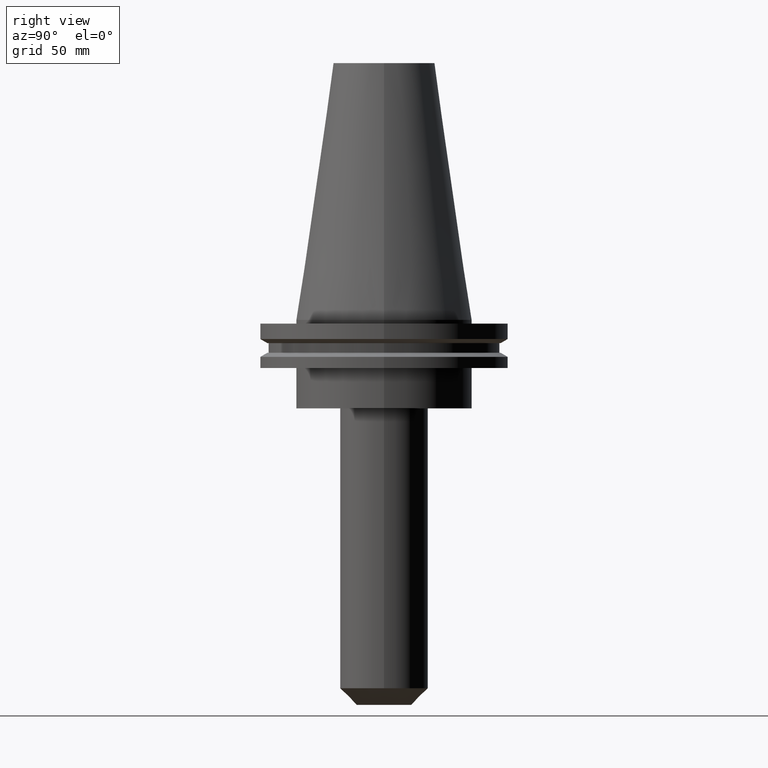
[diagram: clean part render]
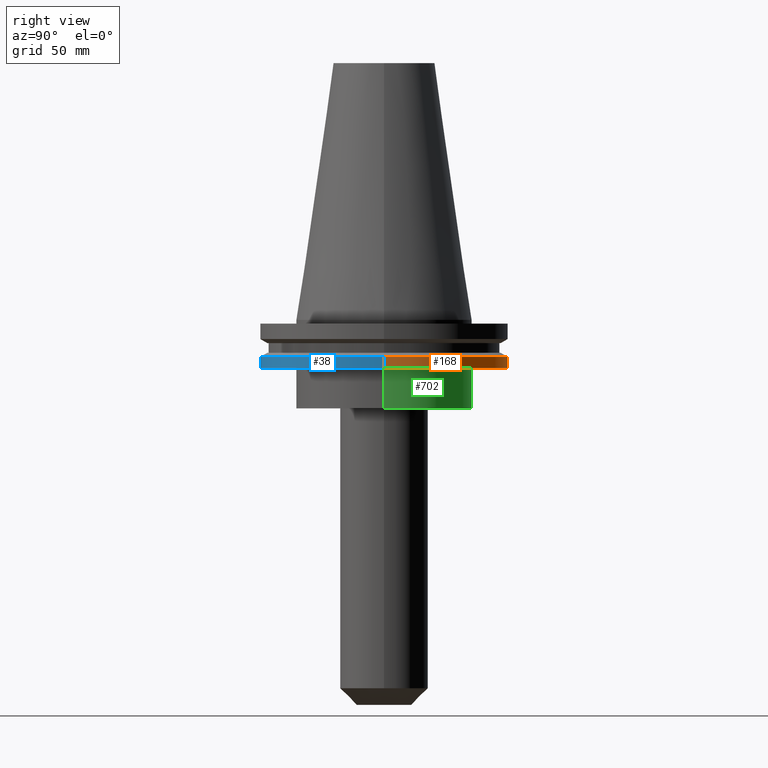
[diagram: same view with three faces highlighted in distinct colors, each labeled with its STEP entity id]
A machine part, right view with three faces highlighted in distinct colors.
Their STEP definitions:

[orange] entity #168 — the highlighted cylindrical surface (partial cylindrical patch) has radius 49.215 mm, axis along (-0, -0, 1).
#11 = VERTEX_POINT ( 'NONE', #688 ) ;
#18 = DIRECTION ( 'NONE',  ( -0.000000000000000000, -0.000000000000000000, 1.000000000000000000 ) ) ;
#35 = ORIENTED_EDGE ( 'NONE', *, *, #505, .F. ) ;
#107 = DIRECTION ( 'NONE',  ( 1.000000000000000000, 0.000000000000000000, 0.000000000000000000 ) ) ;
#130 = VERTEX_POINT ( 'NONE', #236 ) ;
#151 = AXIS2_PLACEMENT_3D ( 'NONE', #795, #18, #204 ) ;
#168 = ADVANCED_FACE ( 'NONE', ( #830 ), #754, .T. ) ;
#173 = DIRECTION ( 'NONE',  ( 1.000000000000000000, 0.000000000000000000, 0.000000000000000000 ) ) ;
#175 = CARTESIAN_POINT ( 'NONE',  ( 0.000000000000000000, 0.000000000000000000, 101.5999999999999943 ) ) ;
#200 = ORIENTED_EDGE ( 'NONE', *, *, #263, .T. ) ;
#203 = ORIENTED_EDGE ( 'NONE', *, *, #612, .F. ) ;
#204 = DIRECTION ( 'NONE',  ( 1.000000000000000000, 0.000000000000000000, 0.000000000000000000 ) ) ;
#236 = CARTESIAN_POINT ( 'NONE',  ( 49.21499999999998920, 0.000000000000000000, -19.04999999999999716 ) ) ;
#238 = CIRCLE ( 'NONE', #151, 49.21499999999998920 ) ;
#252 = AXIS2_PLACEMENT_3D ( 'NONE', #637, #378, #173 ) ;
#254 = VECTOR ( 'NONE', #509, 1000.000000000000000 ) ;
#263 = EDGE_CURVE ( 'NONE', #521, #721, #338, .T. ) ;
#338 = LINE ( 'NONE', #653, #826 ) ;
#356 = EDGE_LOOP ( 'NONE', ( #419, #200, #35, #203 ) ) ;
#372 = CARTESIAN_POINT ( 'NONE',  ( 49.21499999999998920, 0.000000000000000000, 101.5999999999999943 ) ) ;
#378 = DIRECTION ( 'NONE',  ( -0.000000000000000000, -0.000000000000000000, 1.000000000000000000 ) ) ;
#389 = CIRCLE ( 'NONE', #252, 49.21499999999998920 ) ;
#394 = CARTESIAN_POINT ( 'NONE',  ( -49.21499999999998920, 6.027099222003697037E-15, -14.65761014474876944 ) ) ;
#399 = AXIS2_PLACEMENT_3D ( 'NONE', #175, #835, #107 ) ;
#419 = ORIENTED_EDGE ( 'NONE', *, *, #639, .T. ) ;
#498 = LINE ( 'NONE', #372, #254 ) ;
#505 = EDGE_CURVE ( 'NONE', #11, #721, #238, .T. ) ;
#509 = DIRECTION ( 'NONE',  ( -0.000000000000000000, -0.000000000000000000, 1.000000000000000000 ) ) ;
#521 = VERTEX_POINT ( 'NONE', #693 ) ;
#612 = EDGE_CURVE ( 'NONE', #130, #11, #498, .T. ) ;
#637 = CARTESIAN_POINT ( 'NONE',  ( 0.000000000000000000, 0.000000000000000000, -19.04999999999999716 ) ) ;
#639 = EDGE_CURVE ( 'NONE', #130, #521, #389, .T. ) ;
#653 = CARTESIAN_POINT ( 'NONE',  ( -49.21499999999998920, 6.027099222003697037E-15, 101.5999999999999943 ) ) ;
#688 = CARTESIAN_POINT ( 'NONE',  ( 49.21499999999998920, 0.000000000000000000, -14.65761014474876944 ) ) ;
#693 = CARTESIAN_POINT ( 'NONE',  ( -49.21499999999998920, 6.027099222003697037E-15, -19.04999999999999716 ) ) ;
#715 = DIRECTION ( 'NONE',  ( -0.000000000000000000, -0.000000000000000000, 1.000000000000000000 ) ) ;
#721 = VERTEX_POINT ( 'NONE', #394 ) ;
#754 = CYLINDRICAL_SURFACE ( 'NONE', #399, 49.21499999999998920 ) ;
#795 = CARTESIAN_POINT ( 'NONE',  ( 0.000000000000000000, 0.000000000000000000, -14.65761014474876944 ) ) ;
#826 = VECTOR ( 'NONE', #715, 1000.000000000000000 ) ;
#830 = FACE_OUTER_BOUND ( 'NONE', #356, .T. ) ;
#835 = DIRECTION ( 'NONE',  ( -0.000000000000000000, -0.000000000000000000, 1.000000000000000000 ) ) ;

[blue] entity #38 — the highlighted cylindrical surface (partial cylindrical patch) has radius 49.215 mm, axis along (-0, -0, 1).
#11 = VERTEX_POINT ( 'NONE', #688 ) ;
#17 = ORIENTED_EDGE ( 'NONE', *, *, #263, .F. ) ;
#38 = ADVANCED_FACE ( 'NONE', ( #157 ), #424, .T. ) ;
#52 = EDGE_CURVE ( 'NONE', #521, #130, #825, .T. ) ;
#94 = DIRECTION ( 'NONE',  ( 1.000000000000000000, 0.000000000000000000, 0.000000000000000000 ) ) ;
#130 = VERTEX_POINT ( 'NONE', #236 ) ;
#144 = CARTESIAN_POINT ( 'NONE',  ( 0.000000000000000000, 0.000000000000000000, -19.04999999999999716 ) ) ;
#149 = EDGE_LOOP ( 'NONE', ( #17, #255, #267, #604 ) ) ;
#157 = FACE_OUTER_BOUND ( 'NONE', #149, .T. ) ;
#159 = DIRECTION ( 'NONE',  ( -0.000000000000000000, -0.000000000000000000, 1.000000000000000000 ) ) ;
#207 = DIRECTION ( 'NONE',  ( 1.000000000000000000, 0.000000000000000000, 0.000000000000000000 ) ) ;
#228 = CIRCLE ( 'NONE', #454, 49.21499999999998920 ) ;
#236 = CARTESIAN_POINT ( 'NONE',  ( 49.21499999999998920, 0.000000000000000000, -19.04999999999999716 ) ) ;
#254 = VECTOR ( 'NONE', #509, 1000.000000000000000 ) ;
#255 = ORIENTED_EDGE ( 'NONE', *, *, #52, .T. ) ;
#263 = EDGE_CURVE ( 'NONE', #521, #721, #338, .T. ) ;
#267 = ORIENTED_EDGE ( 'NONE', *, *, #612, .T. ) ;
#338 = LINE ( 'NONE', #653, #826 ) ;
#358 = DIRECTION ( 'NONE',  ( -0.000000000000000000, -0.000000000000000000, 1.000000000000000000 ) ) ;
#372 = CARTESIAN_POINT ( 'NONE',  ( 49.21499999999998920, 0.000000000000000000, 101.5999999999999943 ) ) ;
#394 = CARTESIAN_POINT ( 'NONE',  ( -49.21499999999998920, 6.027099222003697037E-15, -14.65761014474876944 ) ) ;
#424 = CYLINDRICAL_SURFACE ( 'NONE', #767, 49.21499999999998920 ) ;
#429 = EDGE_CURVE ( 'NONE', #721, #11, #228, .T. ) ;
#454 = AXIS2_PLACEMENT_3D ( 'NONE', #816, #159, #207 ) ;
#498 = LINE ( 'NONE', #372, #254 ) ;
#509 = DIRECTION ( 'NONE',  ( -0.000000000000000000, -0.000000000000000000, 1.000000000000000000 ) ) ;
#521 = VERTEX_POINT ( 'NONE', #693 ) ;
#561 = DIRECTION ( 'NONE',  ( -0.000000000000000000, -0.000000000000000000, 1.000000000000000000 ) ) ;
#604 = ORIENTED_EDGE ( 'NONE', *, *, #429, .F. ) ;
#612 = EDGE_CURVE ( 'NONE', #130, #11, #498, .T. ) ;
#653 = CARTESIAN_POINT ( 'NONE',  ( -49.21499999999998920, 6.027099222003697037E-15, 101.5999999999999943 ) ) ;
#685 = CARTESIAN_POINT ( 'NONE',  ( 0.000000000000000000, 0.000000000000000000, 101.5999999999999943 ) ) ;
#688 = CARTESIAN_POINT ( 'NONE',  ( 49.21499999999998920, 0.000000000000000000, -14.65761014474876944 ) ) ;
#693 = CARTESIAN_POINT ( 'NONE',  ( -49.21499999999998920, 6.027099222003697037E-15, -19.04999999999999716 ) ) ;
#712 = AXIS2_PLACEMENT_3D ( 'NONE', #144, #561, #820 ) ;
#715 = DIRECTION ( 'NONE',  ( -0.000000000000000000, -0.000000000000000000, 1.000000000000000000 ) ) ;
#721 = VERTEX_POINT ( 'NONE', #394 ) ;
#767 = AXIS2_PLACEMENT_3D ( 'NONE', #685, #358, #94 ) ;
#816 = CARTESIAN_POINT ( 'NONE',  ( 0.000000000000000000, 0.000000000000000000, -14.65761014474876944 ) ) ;
#820 = DIRECTION ( 'NONE',  ( 1.000000000000000000, 0.000000000000000000, 0.000000000000000000 ) ) ;
#825 = CIRCLE ( 'NONE', #712, 49.21499999999998920 ) ;
#826 = VECTOR ( 'NONE', #715, 1000.000000000000000 ) ;

[green] entity #702 — the highlighted cylindrical surface (partial cylindrical patch) has radius 34.925 mm, axis along (-0, -0, 1).
#65 = DIRECTION ( 'NONE',  ( 1.000000000000000000, 0.000000000000000000, 0.000000000000000000 ) ) ;
#66 = AXIS2_PLACEMENT_3D ( 'NONE', #605, #146, #558 ) ;
#86 = VECTOR ( 'NONE', #834, 1000.000000000000000 ) ;
#115 = CYLINDRICAL_SURFACE ( 'NONE', #720, 34.92499999999999716 ) ;
#129 = CIRCLE ( 'NONE', #161, 34.92499999999999716 ) ;
#134 = DIRECTION ( 'NONE',  ( -0.000000000000000000, -0.000000000000000000, 1.000000000000000000 ) ) ;
#146 = DIRECTION ( 'NONE',  ( -0.000000000000000000, -0.000000000000000000, 1.000000000000000000 ) ) ;
#161 = AXIS2_PLACEMENT_3D ( 'NONE', #711, #323, #65 ) ;
#226 = CARTESIAN_POINT ( 'NONE',  ( -34.92499999999999716, 4.277078946022130887E-15, 101.5999999999999943 ) ) ;
#246 = FACE_OUTER_BOUND ( 'NONE', #544, .T. ) ;
#264 = VERTEX_POINT ( 'NONE', #663 ) ;
#273 = ORIENTED_EDGE ( 'NONE', *, *, #473, .F. ) ;
#308 = LINE ( 'NONE', #383, #550 ) ;
#315 = ORIENTED_EDGE ( 'NONE', *, *, #665, .T. ) ;
#323 = DIRECTION ( 'NONE',  ( -0.000000000000000000, -0.000000000000000000, 1.000000000000000000 ) ) ;
#329 = CIRCLE ( 'NONE', #66, 34.92499999999999716 ) ;
#331 = CARTESIAN_POINT ( 'NONE',  ( 34.92499999999999716, 0.000000000000000000, -35.04999999999999716 ) ) ;
#368 = LINE ( 'NONE', #226, #86 ) ;
#383 = CARTESIAN_POINT ( 'NONE',  ( 34.92499999999999716, 0.000000000000000000, 101.5999999999999943 ) ) ;
#473 = EDGE_CURVE ( 'NONE', #710, #729, #329, .T. ) ;
#524 = CARTESIAN_POINT ( 'NONE',  ( 0.000000000000000000, 0.000000000000000000, 101.5999999999999943 ) ) ;
#527 = DIRECTION ( 'NONE',  ( -0.000000000000000000, -0.000000000000000000, 1.000000000000000000 ) ) ;
#528 = ORIENTED_EDGE ( 'NONE', *, *, #586, .T. ) ;
#542 = ORIENTED_EDGE ( 'NONE', *, *, #732, .F. ) ;
#544 = EDGE_LOOP ( 'NONE', ( #315, #528, #273, #542 ) ) ;
#550 = VECTOR ( 'NONE', #134, 1000.000000000000000 ) ;
#558 = DIRECTION ( 'NONE',  ( 1.000000000000000000, 0.000000000000000000, 0.000000000000000000 ) ) ;
#586 = EDGE_CURVE ( 'NONE', #264, #729, #368, .T. ) ;
#605 = CARTESIAN_POINT ( 'NONE',  ( 0.000000000000000000, 0.000000000000000000, -19.04999999999999716 ) ) ;
#662 = VERTEX_POINT ( 'NONE', #331 ) ;
#663 = CARTESIAN_POINT ( 'NONE',  ( -34.92499999999999716, 4.277078946022130887E-15, -35.04999999999999716 ) ) ;
#665 = EDGE_CURVE ( 'NONE', #662, #264, #129, .T. ) ;
#702 = ADVANCED_FACE ( 'NONE', ( #246 ), #115, .T. ) ;
#710 = VERTEX_POINT ( 'NONE', #850 ) ;
#711 = CARTESIAN_POINT ( 'NONE',  ( 0.000000000000000000, 0.000000000000000000, -35.04999999999999716 ) ) ;
#720 = AXIS2_PLACEMENT_3D ( 'NONE', #524, #527, #779 ) ;
#722 = CARTESIAN_POINT ( 'NONE',  ( -34.92499999999999716, 4.277078946022130887E-15, -19.04999999999999716 ) ) ;
#729 = VERTEX_POINT ( 'NONE', #722 ) ;
#732 = EDGE_CURVE ( 'NONE', #662, #710, #308, .T. ) ;
#779 = DIRECTION ( 'NONE',  ( 1.000000000000000000, 0.000000000000000000, 0.000000000000000000 ) ) ;
#834 = DIRECTION ( 'NONE',  ( -0.000000000000000000, -0.000000000000000000, 1.000000000000000000 ) ) ;
#850 = CARTESIAN_POINT ( 'NONE',  ( 34.92499999999999716, 0.000000000000000000, -19.04999999999999716 ) ) ;